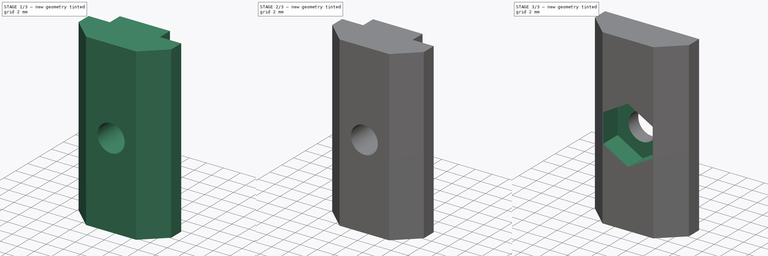
[diagram: build sequence overview — one tinted view per stage of 3, left to right]
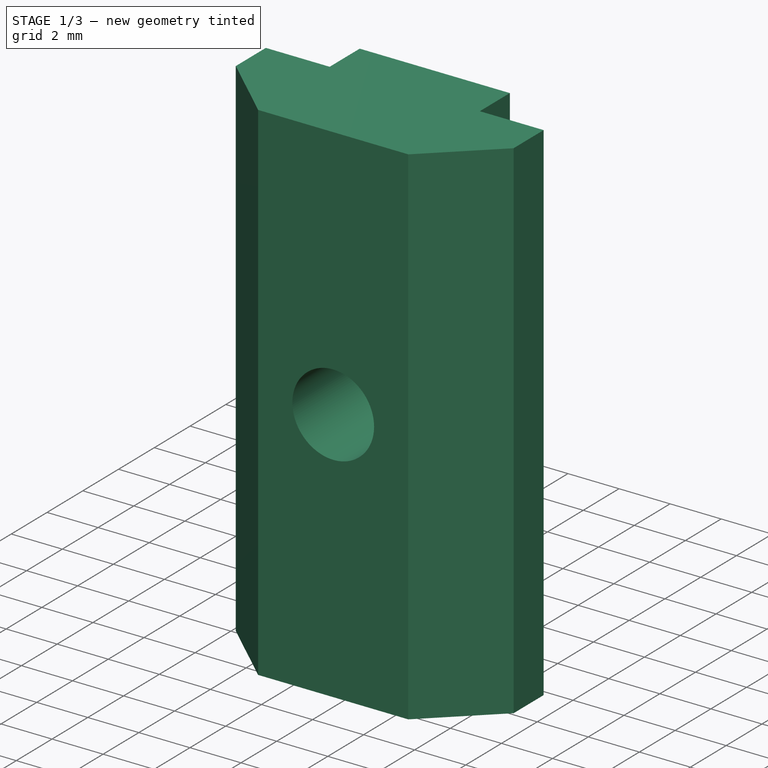
[diagram: stage 1 of 3 — iso view after this stage's code; geometry added in this stage tinted green]
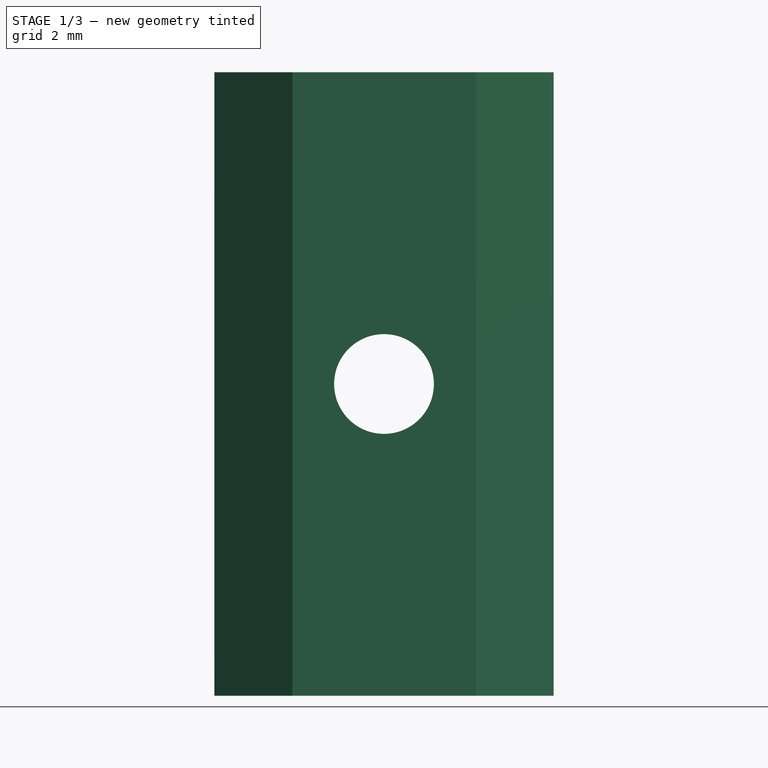
[diagram: stage 1 of 3 — front view after this stage's code; geometry added in this stage tinted green]
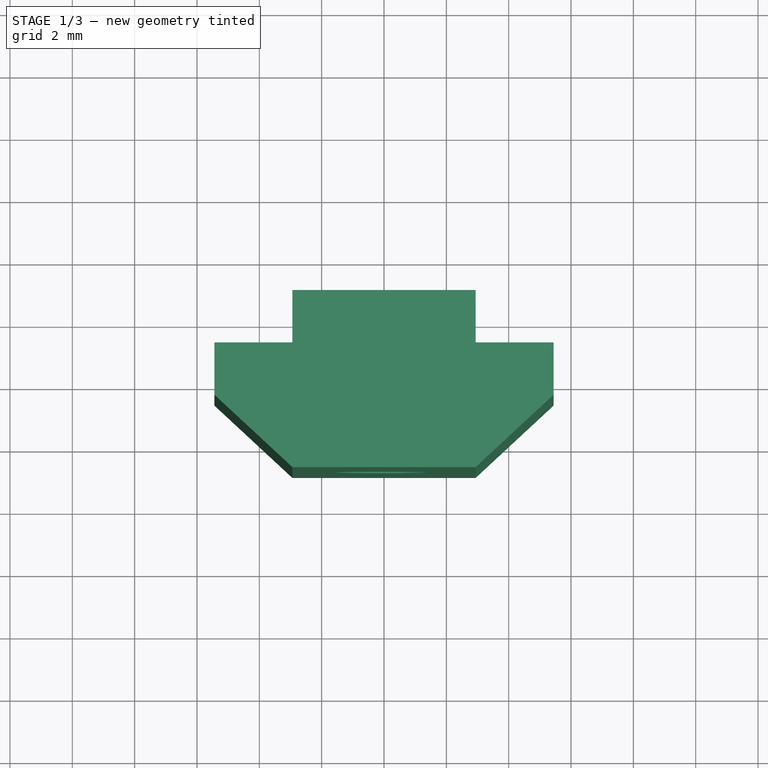
[diagram: stage 1 of 3 — top view after this stage's code; geometry added in this stage tinted green]
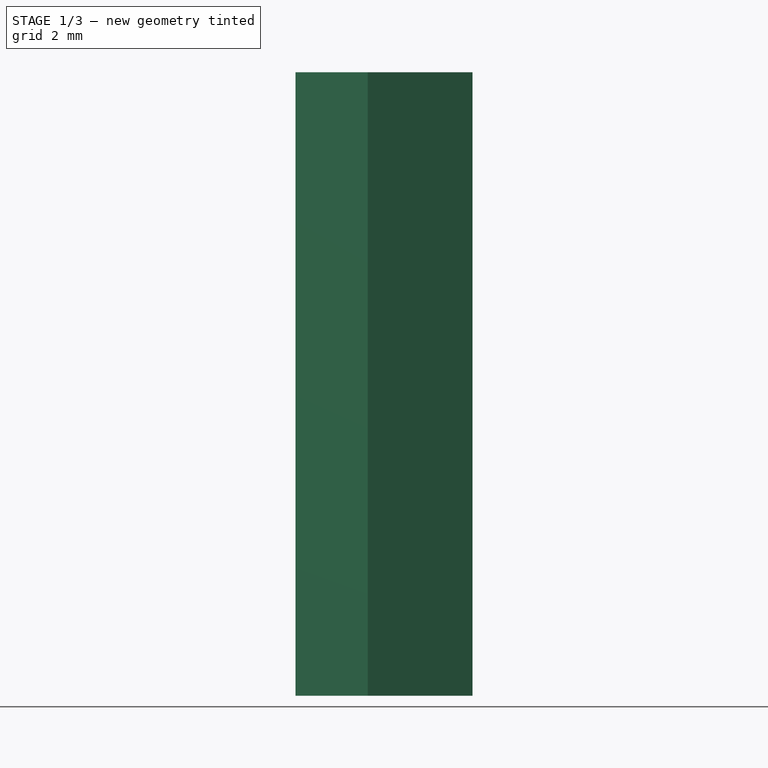
[diagram: stage 1 of 3 — right view after this stage's code; geometry added in this stage tinted green]
FCSTD DOCUMENT  (FreeCAD 0.20R29177 (Git))
Label: v-slot-2020-trem-20mm
License: All rights reserved
LicenseURL: http://en.wikipedia.org/wiki/All_rights_reserved
objects: Sketcher::SketchObject×5, PartDesign::Pocket×3, PartDesign::Pad×2, PartDesign::Body×1
note: 16 computed .brp shape members not serialized (recipe doc carries the construction recipe); baked Part::Feature solids carry a one-line shape summary decoded from their .brp

FEATURE [Sketcher::SketchObject] Sketch
  FullyConstrained = true
  MapMode = 5
  Support = -> [XY_Plane]
  sketch-geometry (16):
    g0: LineSegment StartX=2.94 StartY=-2.84 StartZ=0 EndX=-2.94 EndY=-2.84 EndZ=0
    g1: LineSegment StartX=-2.94 StartY=-2.84 StartZ=0 EndX=-5.44 EndY=-0.52 EndZ=0
    g2: LineSegment StartX=-5.44 StartY=-0.52 StartZ=0 EndX=-5.44 EndY=1.16 EndZ=0
    g3: LineSegment StartX=-5.44 StartY=1.16 StartZ=0 EndX=-2.94 EndY=1.16 EndZ=0
    g4: LineSegment StartX=-2.94 StartY=1.16 StartZ=0 EndX=-2.94 EndY=2.84 EndZ=0
    g5: LineSegment StartX=-2.94 StartY=2.84 StartZ=0 EndX=2.94 EndY=2.84 EndZ=0
    g6: LineSegment StartX=2.94 StartY=2.84 StartZ=0 EndX=2.94 EndY=1.16 EndZ=0
    g7: LineSegment StartX=2.94 StartY=1.16 StartZ=0 EndX=5.44 EndY=1.16 EndZ=0
    g8: LineSegment StartX=5.44 StartY=1.16 StartZ=0 EndX=5.44 EndY=-0.52 EndZ=0
    g9: LineSegment StartX=5.44 StartY=-0.52 StartZ=0 EndX=2.94 EndY=-2.84 EndZ=0
    g10: LineSegment StartX=-2.94 StartY=-2.84 StartZ=0 EndX=0 EndY=-2.84 EndZ=0
    g11: LineSegment StartX=2.94 StartY=-2.84 StartZ=0 EndX=0 EndY=-2.84 EndZ=0
    g12: LineSegment StartX=-2.94 StartY=2.84 StartZ=0 EndX=0 EndY=2.84 EndZ=0
    g13: LineSegment StartX=0 StartY=2.84 StartZ=0 EndX=2.94 EndY=2.84 EndZ=0
    g14: LineSegment StartX=0 StartY=2.84 StartZ=0 EndX=0 EndY=0 EndZ=0
    g15: LineSegment StartX=0 StartY=0 StartZ=0 EndX=0 EndY=-2.84 EndZ=0
  constraints (45):
    c: Horizontal(g0)
    c: Coincident(g0,g1)
    c: Coincident(g1,g2)
    c: Vertical(g2)
    c: Coincident(g2,g3)
    c: Horizontal(g3)
    c: Coincident(g3,g4)
    c: Vertical(g4)
    c: Coincident(g4,g5)
    c: Horizontal(g5)
    c: Coincident(g5,g6)
    c: Coincident(g6,g7)
    c: Horizontal(g7)
    c: Coincident(g7,g8)
    c: Coincident(g8,g9)
    c: Coincident(g9,g0)
    c: Equal(g3,g7)
    c: Vertical(g6)
    c: Equal(g4,g6)
    c: Vertical(g8)
    c: Equal(g8,g2)
    c: Equal(g1,g9)
    c: Coincident(g13,g12)
    c: Coincident(g12,g4)
    c: Coincident(g13,g5)
    c: Coincident(g0,g10)
    c: Coincident(g11,g0)
    c: Coincident(g11,g10)
    c: Equal(g11,g10)
    c: Equal(g12,g13)
    c: Vertical(g12,g-1)
    c: PointOnObject(g12,g5)
    c: PointOnObject(g10,g0)
    c: DistanceX(g5,g5) = 5.88
    c: DistanceY(g4,g4) = 1.68
    c: DistanceY(g0,g5) = 5.68
    c: DistanceX(g1,g8) = 10.88
    c: Equal(g2,g4)
    c: Coincident(g15,g10)
    c: Coincident(g15,g-1)
    c: Coincident(g14,g-1)
    c: PointOnObject(g14,g5)
    c: PointOnObject(g14,g-2)
    c: Equal(g14,g15)
    c: Equal(g0,g5)
FEATURE [PartDesign::Pad] Pad
  Direction = (1,1,1)
  Length = 20
  Length2 = 100
  Profile = -> Sketch
  Type = 0
FEATURE [Sketcher::SketchObject] Sketch001
  ExternalGeometry = -> [Pad]
  FullyConstrained = true
  MapMode = 5
  Placement = pos=(0,2.84,0) rot=(0,0.707107,0.707107;3.14159rad)
  Support = -> [Pad]
  sketch-geometry (6):
    g0: LineSegment StartX=-10 StartY=0 StartZ=0 EndX=10 EndY=-1e-16 EndZ=0
    g1: LineSegment StartX=10 StartY=-1e-16 StartZ=0 EndX=10 EndY=20 EndZ=0
    g2: LineSegment StartX=10 StartY=20 StartZ=0 EndX=-10 EndY=20 EndZ=0
    g3: LineSegment StartX=-10 StartY=20 StartZ=0 EndX=-10 EndY=0 EndZ=0
    g4: Circle CenterX=0 CenterY=10 CenterZ=0 NormalX=0 NormalY=0 NormalZ=1 AngleXU=0 Radius=14.1421
    g5: Circle CenterX=0 CenterY=10 CenterZ=0 NormalX=0 NormalY=0 NormalZ=1 AngleXU=0 Radius=1.6
  constraints (17):
    c: Coincident(g0,g1)
    c: Coincident(g1,g2)
    c: Coincident(g2,g3)
    c: Coincident(g3,g0)
    c: Equal(g0,g1)
    c: Equal(g0,g2)
    c: Equal(g0,g3)
    c: PointOnObject(g0,g4)
    c: PointOnObject(g1,g4)
    c: PointOnObject(g2,g4)
    c: PointOnObject(g3,g4)
    c: Horizontal(g2)
    c: PointOnObject(g4,g-2)
    c: PointOnObject(g-3,g2)
    c: PointOnObject(g-4,g0)
    c: Coincident(g5,g4)
    c: Radius(g5) = 1.6
FEATURE [PartDesign::Pocket] Pocket
  BaseFeature = -> Pad
  Direction = (1,1,1)
  Length = 0
  Length2 = 100
  Profile = -> Sketch001
  Type = 3
  UpToFace = -> Pad [Face1]
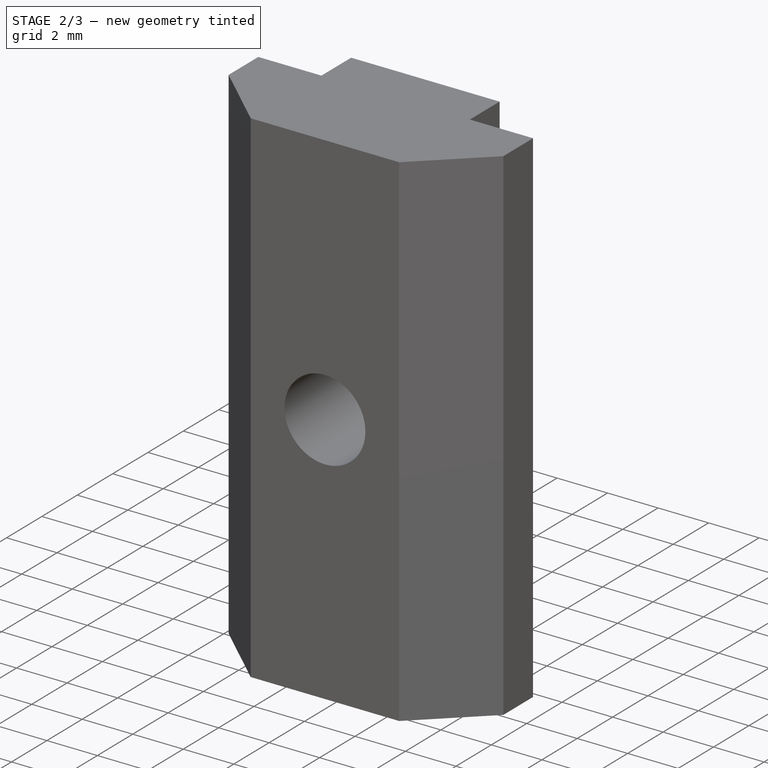
[diagram: stage 2 of 3 — iso view after this stage's code; geometry added in this stage tinted green]
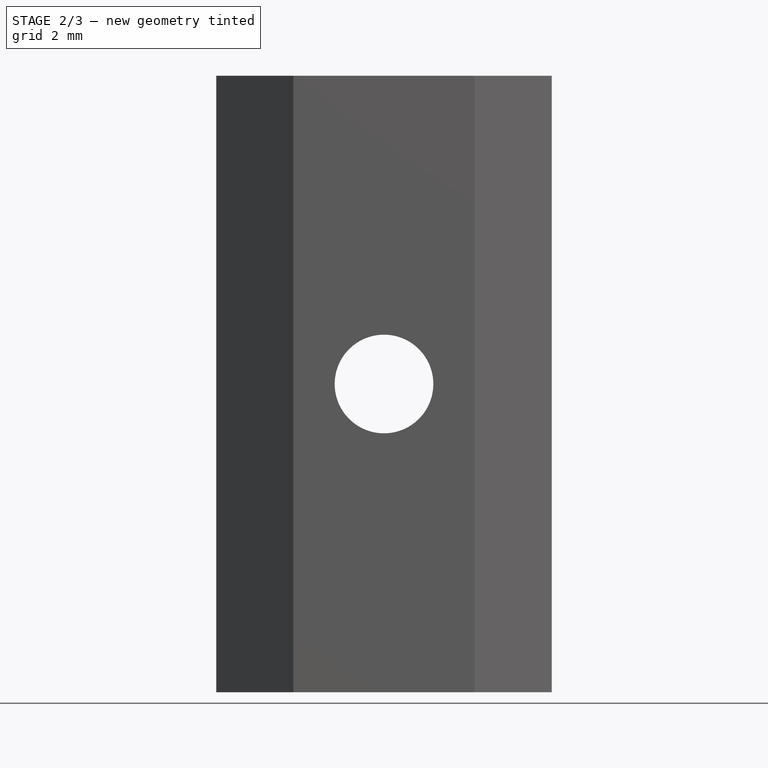
[diagram: stage 2 of 3 — front view after this stage's code; geometry added in this stage tinted green]
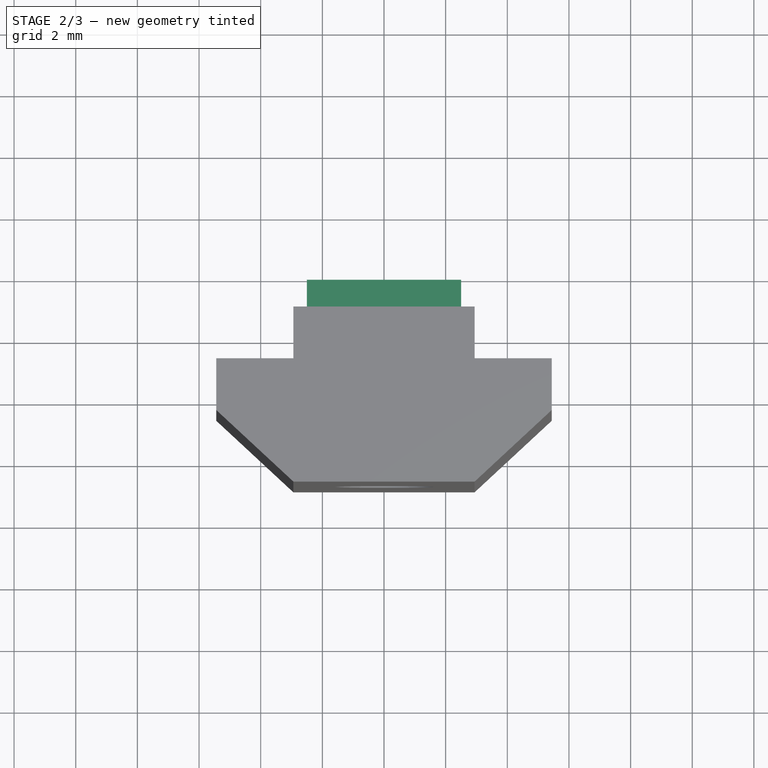
[diagram: stage 2 of 3 — top view after this stage's code; geometry added in this stage tinted green]
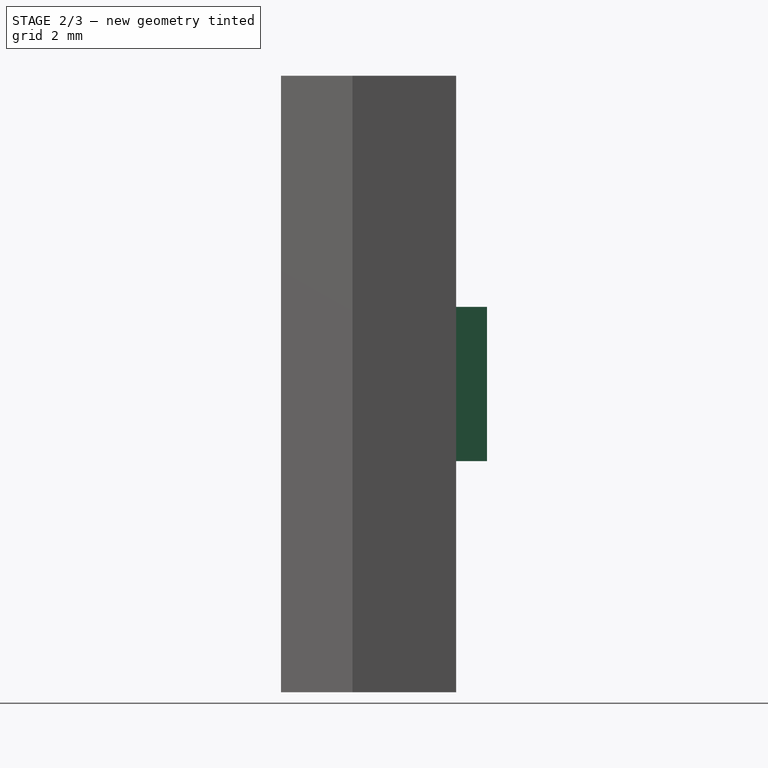
[diagram: stage 2 of 3 — right view after this stage's code; geometry added in this stage tinted green]
FEATURE [Sketcher::SketchObject] Sketch002
  ExternalGeometry = -> [Pocket]
  FullyConstrained = true
  MapMode = 5
  Placement = pos=(0,2.84,0) rot=(0,0.707107,0.707107;3.14159rad)
  Support = -> [Pocket]
  sketch-geometry (7):
    g0: Circle CenterX=0 CenterY=10 CenterZ=0 NormalX=0 NormalY=0 NormalZ=1 AngleXU=0 Radius=1.6
    g1: Circle CenterX=0 CenterY=10 CenterZ=0 NormalX=0 NormalY=0 NormalZ=1 AngleXU=0 Radius=2.4
    g2: LineSegment StartX=2.5 StartY=12.5 StartZ=0 EndX=-2.5 EndY=12.5 EndZ=0
    g3: LineSegment StartX=-2.5 StartY=12.5 StartZ=0 EndX=-2.5 EndY=7.5 EndZ=0
    g4: LineSegment StartX=-2.5 StartY=7.5 StartZ=0 EndX=2.5 EndY=7.5 EndZ=0
    g5: LineSegment StartX=2.5 StartY=7.5 StartZ=0 EndX=2.5 EndY=12.5 EndZ=0
    g6: Circle CenterX=0 CenterY=10 CenterZ=0 NormalX=0 NormalY=0 NormalZ=1 AngleXU=0 Radius=3.53553
  constraints (18):
    c: Equal(g0,g-3)
    c: Coincident(g1,g0)
    c: Radius(g1) = 2.4
    c: Coincident(g0,g-3)
    c: Coincident(g2,g3)
    c: Coincident(g3,g4)
    c: Coincident(g4,g5)
    c: Coincident(g5,g2)
    c: Equal(g2,g3)
    c: Equal(g2,g4)
    c: Equal(g2,g5)
    c: PointOnObject(g2,g6)
    c: PointOnObject(g3,g6)
    c: PointOnObject(g4,g6)
    c: PointOnObject(g5,g6)
    c: Coincident(g6,g0)
    c: Horizontal(g2)
    c: DistanceY(g5,g5) = 5
FEATURE [PartDesign::Pad] Pad001
  BaseFeature = -> Pocket
  Direction = (1,1,1)
  Length = 1
  Length2 = 100
  Profile = -> Sketch002
  Type = 0
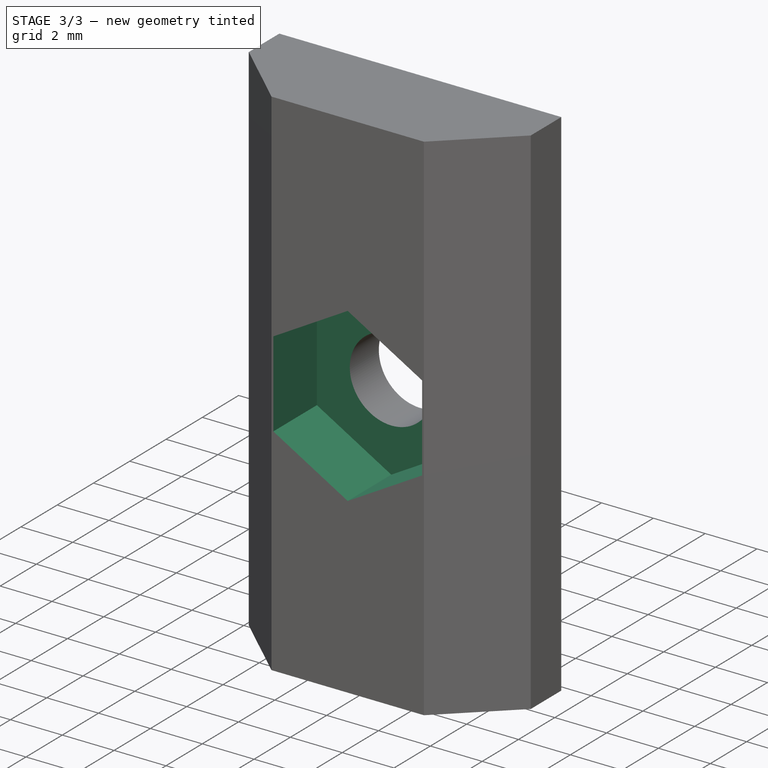
[diagram: stage 3 of 3 — iso view after this stage's code; geometry added in this stage tinted green]
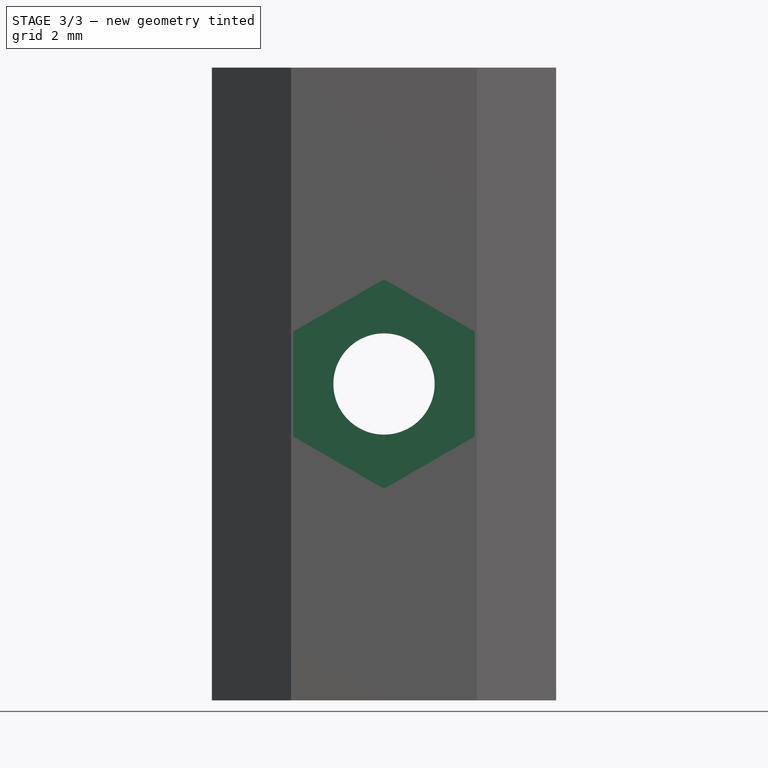
[diagram: stage 3 of 3 — front view after this stage's code; geometry added in this stage tinted green]
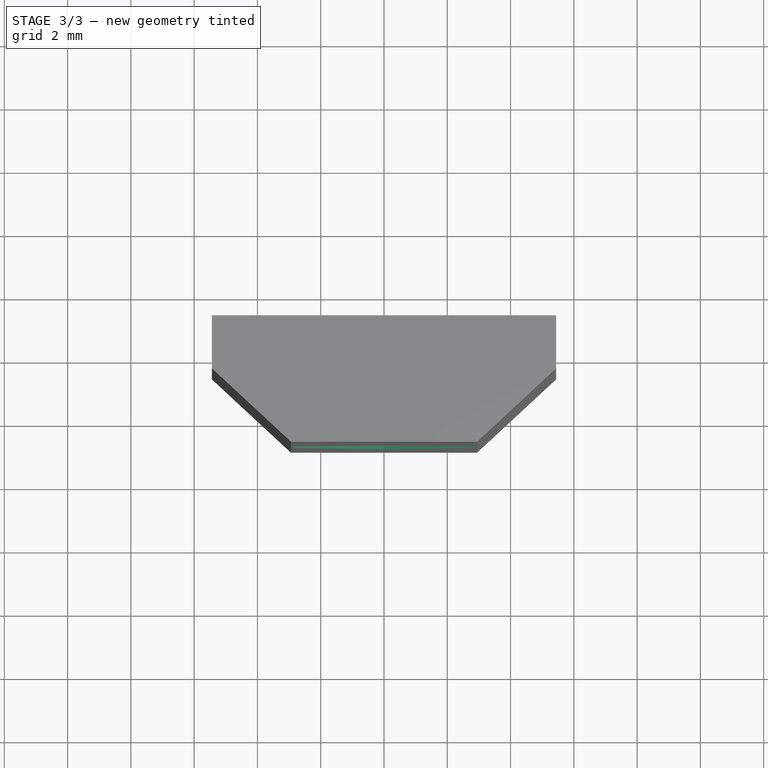
[diagram: stage 3 of 3 — top view after this stage's code; geometry added in this stage tinted green]
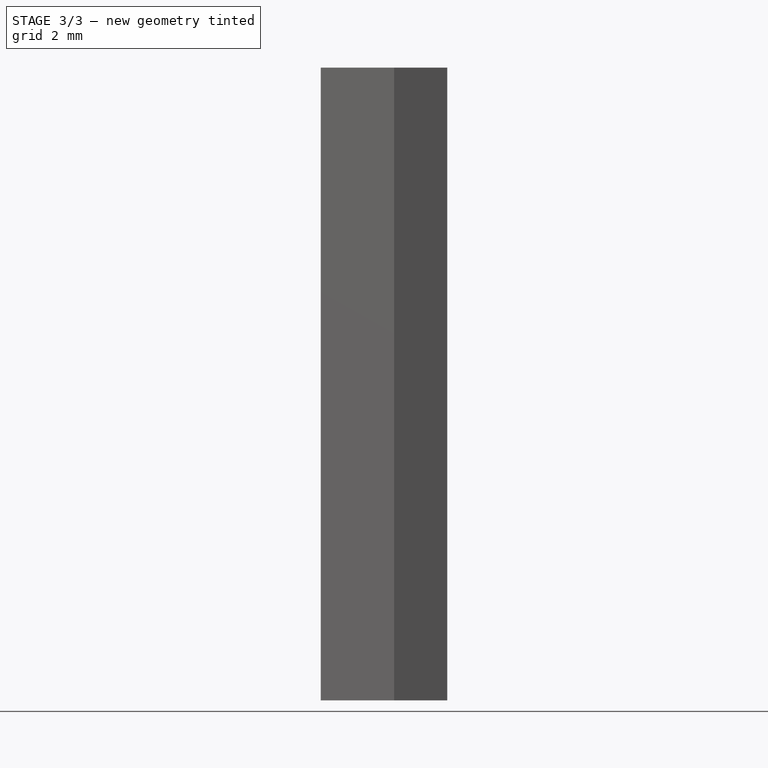
[diagram: stage 3 of 3 — right view after this stage's code; geometry added in this stage tinted green]
FEATURE [Sketcher::SketchObject] Sketch003
  ExternalGeometry = -> [Pad001]
  FullyConstrained = true
  MapMode = 5
  Placement = pos=(0,-2.84,0) rot=(1,0,0;1.5708rad)
  Support = -> [Pad001]
  sketch-geometry (8):
    g0: Circle CenterX=0 CenterY=10 CenterZ=0 NormalX=0 NormalY=0 NormalZ=1 AngleXU=0 Radius=1.6
    g1: LineSegment StartX=0 StartY=6.68601 StartZ=0 EndX=2.87 EndY=8.343 EndZ=0
    g2: LineSegment StartX=2.87 StartY=8.343 StartZ=0 EndX=2.87 EndY=11.657 EndZ=0
    g3: LineSegment StartX=2.87 StartY=11.657 StartZ=0 EndX=-9e-16 EndY=13.314 EndZ=0
    g4: LineSegment StartX=-9e-16 StartY=13.314 StartZ=0 EndX=-2.87 EndY=11.657 EndZ=0
    g5: LineSegment StartX=-2.87 StartY=11.657 StartZ=0 EndX=-2.87 EndY=8.343 EndZ=0
    g6: LineSegment StartX=-2.87 StartY=8.343 StartZ=0 EndX=0 EndY=6.68601 EndZ=0
    g7: Circle CenterX=0 CenterY=10 CenterZ=0 NormalX=0 NormalY=0 NormalZ=1 AngleXU=0 Radius=3.31399
  constraints (18):
    c: Coincident(g0,g-3)
    c: Equal(g0,g-3)
    c: Coincident(g1,g2)
    c: Coincident(g2,g3)
    c: Coincident(g3,g4)
    c: Coincident(g4,g5)
    c: Coincident(g5,g6)
    c: Coincident(g6,g1)
    c: Equal(g1, g2-g6) x5
    c: PointOnObject(g1,g7)
    c: PointOnObject(g2,g7)
    c: PointOnObject(g3,g7)
    c: PointOnObject(g4,g7)
    c: PointOnObject(g5,g7)
    c: PointOnObject(g6,g7)
    c: Coincident(g7,g0)
    c: PointOnObject(g1,g-2)
    c: DistanceX(g4,g2) = 5.74
FEATURE [PartDesign::Pocket] Pocket001
  BaseFeature = -> Pad001
  Direction = (1,1,1)
  Length = 2.4
  Length2 = 100
  Profile = -> Sketch003
  Type = 0
FEATURE [Sketcher::SketchObject] Sketch004
  ExternalGeometry = -> [Pocket001]
  FullyConstrained = true
  MapMode = 5
  Placement = pos=(0,0,0) rot=(1,0,0;3.14159rad)
  Support = -> [Pocket001]
  sketch-geometry (4):
    g0: LineSegment StartX=-2.94 StartY=-1.16 StartZ=0 EndX=2.94 EndY=-1.16 EndZ=0
    g1: LineSegment StartX=2.94 StartY=-1.16 StartZ=0 EndX=2.94 EndY=-3.84 EndZ=0
    g2: LineSegment StartX=2.94 StartY=-3.84 StartZ=0 EndX=-2.94 EndY=-3.84 EndZ=0
    g3: LineSegment StartX=-2.94 StartY=-3.84 StartZ=0 EndX=-2.94 EndY=-1.16 EndZ=0
  constraints (11):
    c: Coincident(g0,g1)
    c: Coincident(g1,g2)
    c: Coincident(g2,g3)
    c: Coincident(g3,g0)
    c: Horizontal(g0)
    c: Horizontal(g2)
    c: Vertical(g1)
    c: Vertical(g3)
    c: Coincident(g0,g-3)
    c: PointOnObject(g-4,g2)
    c: PointOnObject(g-5,g1)
FEATURE [PartDesign::Pocket] Pocket002
  BaseFeature = -> Pocket001
  Direction = (0,0,1)
  Length = 5
  Length2 = 5
  Profile = -> Sketch004
  ReferenceAxis = -> Sketch004 [N_Axis]
  Type = 1
FEATURE [PartDesign::Body] Body
  Group = -> [Sketch,Pad,Sketch001,Pocket,Sketch002,Pad001,Sketch003,Pocket001,Sketch004,Pocket002]
  Origin = -> Origin
  Tip = -> Pocket002
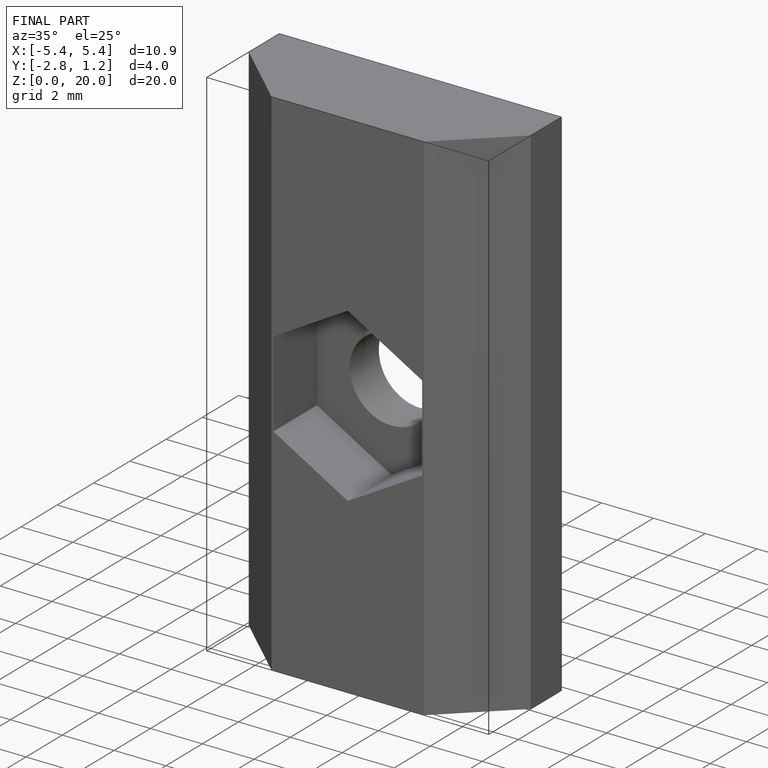
[diagram: finished part — iso view with bounding-box wireframe]
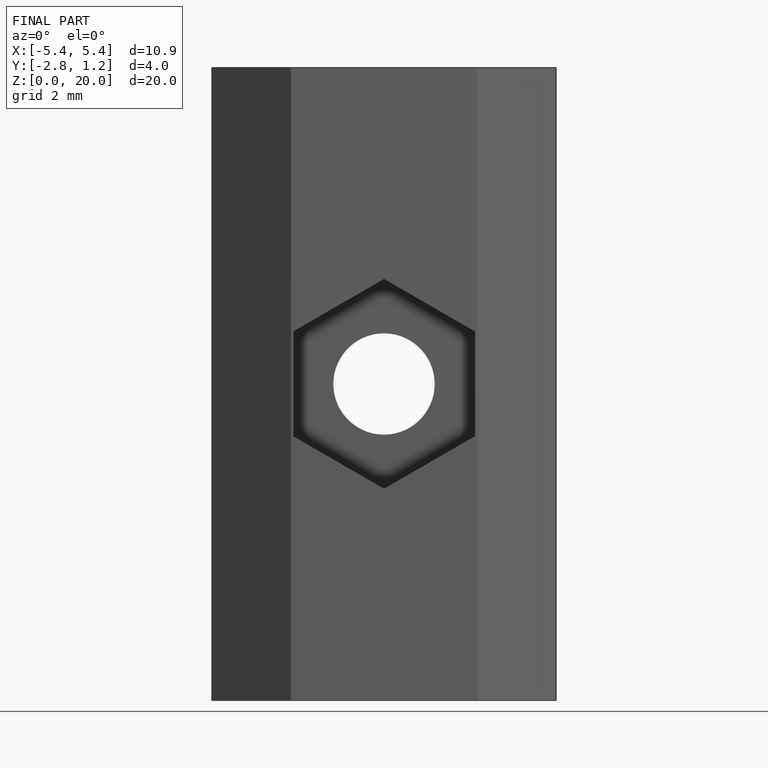
[diagram: finished part — front view with bounding-box wireframe]
